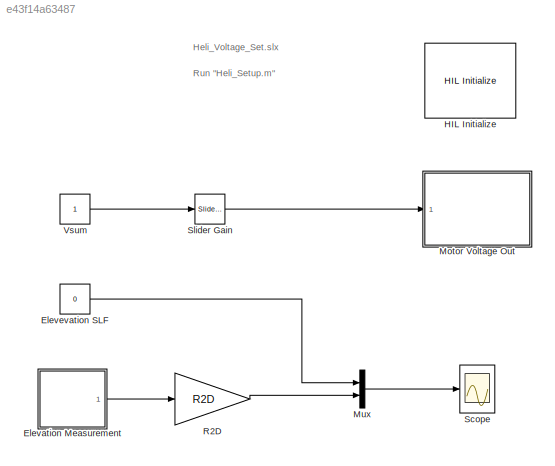
MODEL slx_e43f14a63487
KIND model
CONFIG AbsTol = auto
CONFIG FixedStep = 0.01
CONFIG MaxStep = auto
CONFIG MinStep = auto
CONFIG RelTol = 1e-3
CONFIG SampleTimeConstraint = Unconstrained
CONFIG Solver = FixedStepDiscrete
CONFIG SolverMode = Auto
CONFIG SolverName = FixedStepDiscrete
CONFIG StartTime = 0.0
CONFIG StopTime = inf
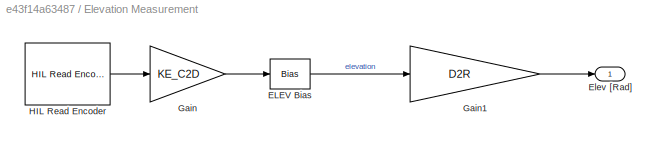
BLOCK [SubSystem] Elevation Measurement
  Ports = [0, 1]
  RequestExecContextInheritance = off
  Variant = off
BLOCK [Bias] Elevation Measurement/ELEV Bias
  Bias = ELEV_START
  SaturateOnIntegerOverflow = off
BLOCK [Outport] Elevation Measurement/Elev [Rad]
  IconDisplay = Port number
BLOCK [Gain] Elevation Measurement/Gain
  Gain = KE_C2D
  OutDataTypeStr = Inherit: Inherit via internal rule
  ParamDataTypeStr = Inherit: Inherit via internal rule
  SaturateOnIntegerOverflow = off
BLOCK [Gain] Elevation Measurement/Gain1
  Gain = D2R
  OutDataTypeStr = Inherit: Inherit via internal rule
  ParamDataTypeStr = Inherit: Inherit via internal rule
  SaturateOnIntegerOverflow = off
BLOCK [Reference] Elevation Measurement/HIL Read Encoder  REF=quarc_library/Data Acquisition/Generic/Immediate I//O/HIL Read Encoder
  AttributesFormatString = (%<object_name>)
  Ports = [0, 1]
  SourceBlock = quarc_library/Data Acquisition/Generic/Immediate I//O/HIL Read Encoder
  SourceType = HIL Read Encoder
  UserDataPersistent = on
BLOCK [Constant] Elevevation SLF
  Value = 0
BLOCK [Reference] HIL Initialize  REF=quarc_library/Data Acquisition/Generic/Configuration/HIL Initialize
  AttributesFormatString = %<object_name> (%<board_type>-%<board_number>)
  Ports = []
  Priority = -99
  SourceBlock = quarc_library/Data Acquisition/Generic/Configuration/HIL Initialize
  SourceType = HIL Initialize
  UserDataPersistent = on
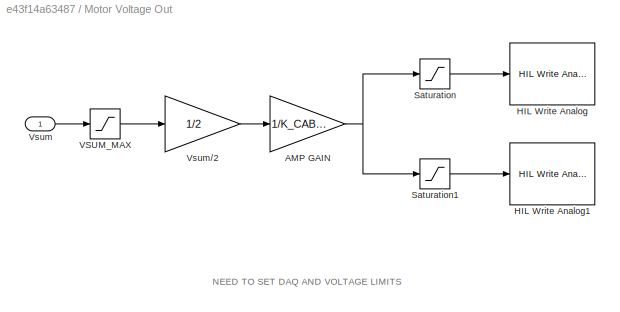
BLOCK [SubSystem] Motor Voltage Out
  Ports = [1]
  RequestExecContextInheritance = off
  Variant = off
BLOCK [Gain] Motor Voltage Out/AMP GAIN
  Gain = 1/K_CABLE
  OutDataTypeStr = Inherit: Inherit via internal rule
  ParamDataTypeStr = Inherit: Inherit via internal rule
  SaturateOnIntegerOverflow = off
BLOCK [Reference] Motor Voltage Out/HIL Write Analog  REF=quarc_library/Data Acquisition/Generic/Immediate I//O/HIL Write Analog
  AttributesFormatString = (%<object_name>)
  Ports = [1]
  SourceBlock = quarc_library/Data Acquisition/Generic/Immediate I//O/HIL Write Analog
  SourceType = HIL Write Analog
  UserDataPersistent = on
BLOCK [Reference] Motor Voltage Out/HIL Write Analog1  REF=quarc_library/Data Acquisition/Generic/Immediate I//O/HIL Write Analog
  AttributesFormatString = (%<object_name>)
  Ports = [1]
  SourceBlock = quarc_library/Data Acquisition/Generic/Immediate I//O/HIL Write Analog
  SourceType = HIL Write Analog
  UserDataPersistent = on
BLOCK [Saturate] Motor Voltage Out/Saturation
  InputPortMap = u0
  LowerLimit = -K_DAQ
  Ports = [1, 1]
  UpperLimit = K_DAQ
BLOCK [Saturate] Motor Voltage Out/Saturation1
  InputPortMap = u0
  LowerLimit = -K_DAQ
  Ports = [1, 1]
  UpperLimit = K_DAQ
BLOCK [Saturate] Motor Voltage Out/VSUM_MAX
  InputPortMap = u0
  LowerLimit = 0
  Ports = [1, 1]
  UpperLimit = VSUM_MAX
BLOCK [Inport] Motor Voltage Out/Vsum
  IconDisplay = Port number
BLOCK [Gain] Motor Voltage Out/Vsum//2
  Gain = 1/2
  OutDataTypeStr = Inherit: Inherit via internal rule
  ParamDataTypeStr = Inherit: Inherit via internal rule
  SaturateOnIntegerOverflow = off
BLOCK [Mux] Mux
  DisplayOption = bar
  Inputs = 2
  Ports = [2, 1]
BLOCK [Gain] R2D
  Gain = R2D
  OutDataTypeStr = Inherit: Inherit via internal rule
  ParamDataTypeStr = Inherit: Inherit via internal rule
  SaturateOnIntegerOverflow = off
BLOCK [Scope] Scope
  Ports = [1]
  ScopeSpecificationString = Simulink.scopes.TimeScopeBlockCfg('CurrentConfiguration', extmgr.ConfigurationSet(extmgr.Configuration('Core','General UI',true),extmgr.Configuration('Core','Source UI',true),extmgr.Configuration('Sources','WiredSimulink',true,'DataLoggingVariableName','ScopeData1','DataLoggingSaveFormat','StructureWithTime','DataLoggingDecimation','1','DataLoggingDecimateData',true),extmgr.Configuration('Visuals'...<+1759ch>
BLOCK [Reference] Slider Gain  REF=simulink/Math
Operations/Slider
Gain
  Ports = [1, 1]
  SourceBlock = simulink/Math\nOperations/Slider\nGain
  SourceType = Slider Gain
BLOCK [Constant] Vsum
ANNOTATION (root): Heli_Voltage_Set.slx
ANNOTATION (root): Run "Heli_Setup.m"
ANNOTATION Motor Voltage Out: NEED TO SET DAQ AND VOLTAGE LIMITS
LINE Elevation Measurement/ELEV Bias:1 -> Elevation Measurement/Gain1:1
LINE Elevation Measurement/Gain1:1 -> Elevation Measurement/Elev [Rad]:1
LINE Elevation Measurement/Gain:1 -> Elevation Measurement/ELEV Bias:1
LINE Elevation Measurement/HIL Read Encoder:1 -> Elevation Measurement/Gain:1
LINE Elevation Measurement:1 -> R2D:1
LINE Elevevation SLF:1 -> Mux:1
NET Motor Voltage Out/AMP GAIN:1 -> Motor Voltage Out/Saturation1:1, Motor Voltage Out/Saturation:1
LINE Motor Voltage Out/Saturation1:1 -> Motor Voltage Out/HIL Write Analog1:1
LINE Motor Voltage Out/Saturation:1 -> Motor Voltage Out/HIL Write Analog:1
LINE Motor Voltage Out/VSUM_MAX:1 -> Motor Voltage Out/Vsum//2:1
LINE Motor Voltage Out/Vsum//2:1 -> Motor Voltage Out/AMP GAIN:1
LINE Motor Voltage Out/Vsum:1 -> Motor Voltage Out/VSUM_MAX:1
LINE Mux:1 -> Scope:1
LINE R2D:1 -> Mux:2
LINE Slider Gain:1 -> Motor Voltage Out:1
LINE Vsum:1 -> Slider Gain:1
note: NET lines group one-source signal fan-out (src -> all destinations, sorted); 1:1 wires keep LINE
